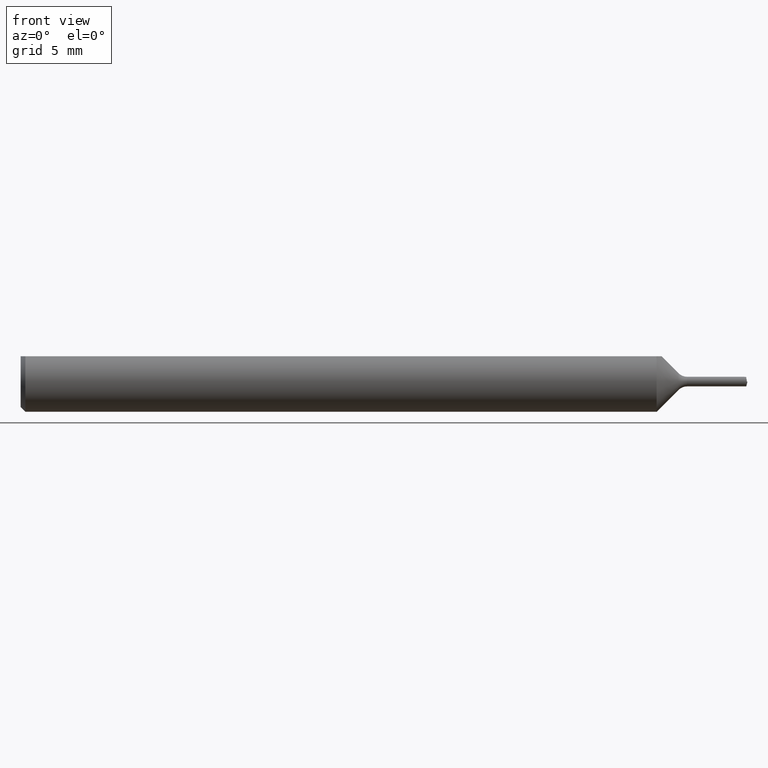
[diagram: clean part render]
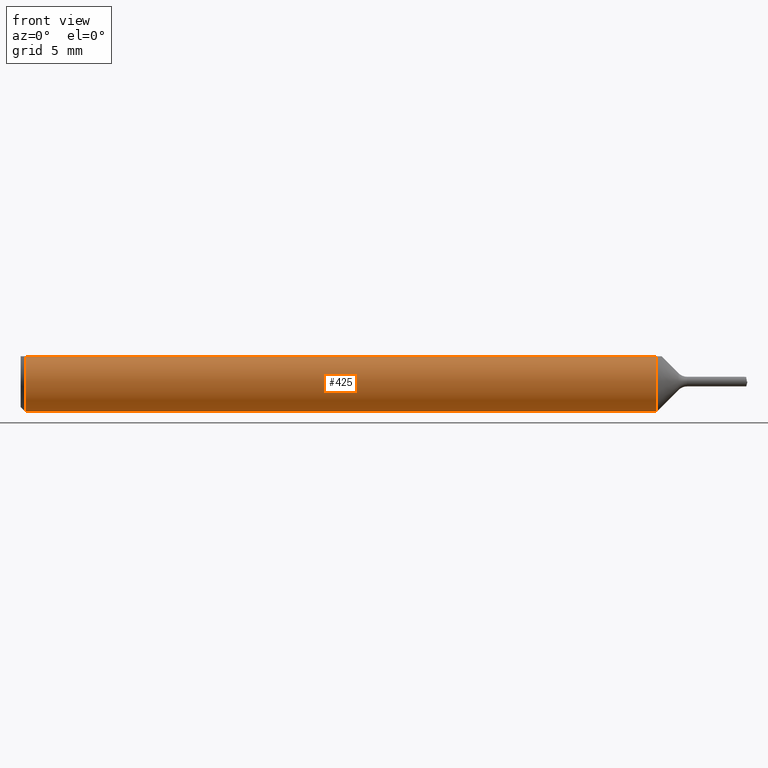
[diagram: same view with one face highlighted and labeled with its STEP entity id]
A machine part, front view. The second image highlights one B-rep face of the part: STEP entity #425.
In plain terms, the highlighted cylindrical surface (edge-blend (fillet) strip) has radius 1.5837 mm, axis along (-1, -0, -0).
Its self-contained STEP definition (entity closure, byte-faithful):
#10 = CARTESIAN_POINT ( 'NONE',  ( 1.312650000000000317, -0.03386738844375220686, 0.05235000000000000070 ) ) ;
#16 = DIRECTION ( 'NONE',  ( -1.000000000000000000, -0.000000000000000000, -0.000000000000000000 ) ) ;
#17 = ORIENTED_EDGE ( 'NONE', *, *, #626, .T. ) ;
#22 = CARTESIAN_POINT ( 'NONE',  ( 0.009999999999999890921, 0.03386738844375217911, 0.05235000000000001458 ) ) ;
#33 = VERTEX_POINT ( 'NONE', #378 ) ;
#37 = ORIENTED_EDGE ( 'NONE', *, *, #177, .T. ) ;
#40 = DIRECTION ( 'NONE',  ( -1.000000000000000000, -0.000000000000000000, -0.000000000000000000 ) ) ;
#48 = FACE_OUTER_BOUND ( 'NONE', #146, .T. ) ;
#49 = ORIENTED_EDGE ( 'NONE', *, *, #439, .T. ) ;
#51 = DIRECTION ( 'NONE',  ( 0.000000000000000000, 0.000000000000000000, -1.000000000000000000 ) ) ;
#62 = CARTESIAN_POINT ( 'NONE',  ( 0.000000000000000000, -0.03386738844375220686, 0.05235000000000000070 ) ) ;
#70 = AXIS2_PLACEMENT_3D ( 'NONE', #140, #40, #530 ) ;
#90 = VECTOR ( 'NONE', #411, 39.37007874015748143 ) ;
#99 = CARTESIAN_POINT ( 'NONE',  ( 0.009999999999999887451, 0.000000000000000000, 0.000000000000000000 ) ) ;
#107 = DIRECTION ( 'NONE',  ( -1.000000000000000000, -0.000000000000000000, -0.000000000000000000 ) ) ;
#140 = CARTESIAN_POINT ( 'NONE',  ( 1.312650000000000317, 0.000000000000000000, 0.000000000000000000 ) ) ;
#144 = CIRCLE ( 'NONE', #701, 0.06235000000000000264 ) ;
#146 = EDGE_LOOP ( 'NONE', ( #685, #37, #49, #253, #575, #17 ) ) ;
#156 = CIRCLE ( 'NONE', #70, 0.06235000000000000264 ) ;
#177 = EDGE_CURVE ( 'NONE', #283, #524, #294, .T. ) ;
#181 = CARTESIAN_POINT ( 'NONE',  ( 1.312650000000000317, 0.000000000000000000, 0.000000000000000000 ) ) ;
#196 = CARTESIAN_POINT ( 'NONE',  ( 1.312650000000000317, 0.03386738844375220686, 0.05235000000000000070 ) ) ;
#210 = VERTEX_POINT ( 'NONE', #22 ) ;
#226 = CARTESIAN_POINT ( 'NONE',  ( 0.009999999999999887451, 0.000000000000000000, 0.000000000000000000 ) ) ;
#253 = ORIENTED_EDGE ( 'NONE', *, *, #416, .T. ) ;
#283 = VERTEX_POINT ( 'NONE', #620 ) ;
#294 = CIRCLE ( 'NONE', #478, 0.06235000000000000264 ) ;
#323 = EDGE_CURVE ( 'NONE', #410, #283, #156, .T. ) ;
#355 = LINE ( 'NONE', #624, #90 ) ;
#365 = AXIS2_PLACEMENT_3D ( 'NONE', #474, #696, #573 ) ;
#378 = CARTESIAN_POINT ( 'NONE',  ( 0.009999999999999887451, 0.000000000000000000, -0.06235000000000000264 ) ) ;
#406 = VERTEX_POINT ( 'NONE', #625 ) ;
#409 = CYLINDRICAL_SURFACE ( 'NONE', #365, 0.06235000000000000264 ) ;
#410 = VERTEX_POINT ( 'NONE', #196 ) ;
#411 = DIRECTION ( 'NONE',  ( 1.000000000000000000, 0.000000000000000000, 0.000000000000000000 ) ) ;
#416 = EDGE_CURVE ( 'NONE', #406, #33, #586, .T. ) ;
#425 = ADVANCED_FACE ( 'NONE', ( #48 ), #409, .T. ) ;
#435 = AXIS2_PLACEMENT_3D ( 'NONE', #99, #534, #51 ) ;
#439 = EDGE_CURVE ( 'NONE', #524, #406, #493, .T. ) ;
#440 = DIRECTION ( 'NONE',  ( 0.000000000000000000, 0.000000000000000000, -1.000000000000000000 ) ) ;
#474 = CARTESIAN_POINT ( 'NONE',  ( 0.000000000000000000, 0.000000000000000000, 0.000000000000000000 ) ) ;
#478 = AXIS2_PLACEMENT_3D ( 'NONE', #181, #16, #508 ) ;
#493 = LINE ( 'NONE', #62, #653 ) ;
#508 = DIRECTION ( 'NONE',  ( 0.000000000000000000, 0.000000000000000000, 1.000000000000000000 ) ) ;
#524 = VERTEX_POINT ( 'NONE', #10 ) ;
#526 = EDGE_CURVE ( 'NONE', #33, #210, #144, .T. ) ;
#530 = DIRECTION ( 'NONE',  ( 0.000000000000000000, 0.000000000000000000, 1.000000000000000000 ) ) ;
#534 = DIRECTION ( 'NONE',  ( 1.000000000000000000, 0.000000000000000000, 0.000000000000000000 ) ) ;
#546 = DIRECTION ( 'NONE',  ( 1.000000000000000000, 0.000000000000000000, 0.000000000000000000 ) ) ;
#573 = DIRECTION ( 'NONE',  ( 0.000000000000000000, 0.000000000000000000, 1.000000000000000000 ) ) ;
#575 = ORIENTED_EDGE ( 'NONE', *, *, #526, .T. ) ;
#586 = CIRCLE ( 'NONE', #435, 0.06235000000000000264 ) ;
#620 = CARTESIAN_POINT ( 'NONE',  ( 1.312650000000000317, 7.635672792683746671E-18, -0.06234999999999999570 ) ) ;
#624 = CARTESIAN_POINT ( 'NONE',  ( 0.000000000000000000, 0.03386738844375220686, 0.05235000000000000070 ) ) ;
#625 = CARTESIAN_POINT ( 'NONE',  ( 0.01000000000000840841, -0.03386738844395137393, 0.05235000000000001458 ) ) ;
#626 = EDGE_CURVE ( 'NONE', #210, #410, #355, .T. ) ;
#653 = VECTOR ( 'NONE', #107, 39.37007874015748143 ) ;
#685 = ORIENTED_EDGE ( 'NONE', *, *, #323, .T. ) ;
#696 = DIRECTION ( 'NONE',  ( -1.000000000000000000, -0.000000000000000000, -0.000000000000000000 ) ) ;
#701 = AXIS2_PLACEMENT_3D ( 'NONE', #226, #546, #440 ) ;